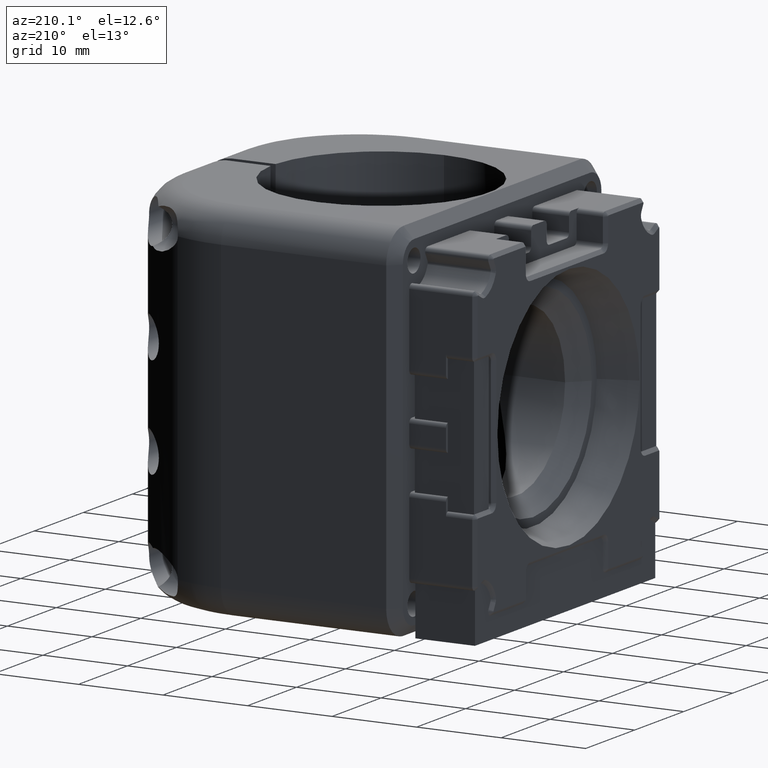
[diagram: clean part render]
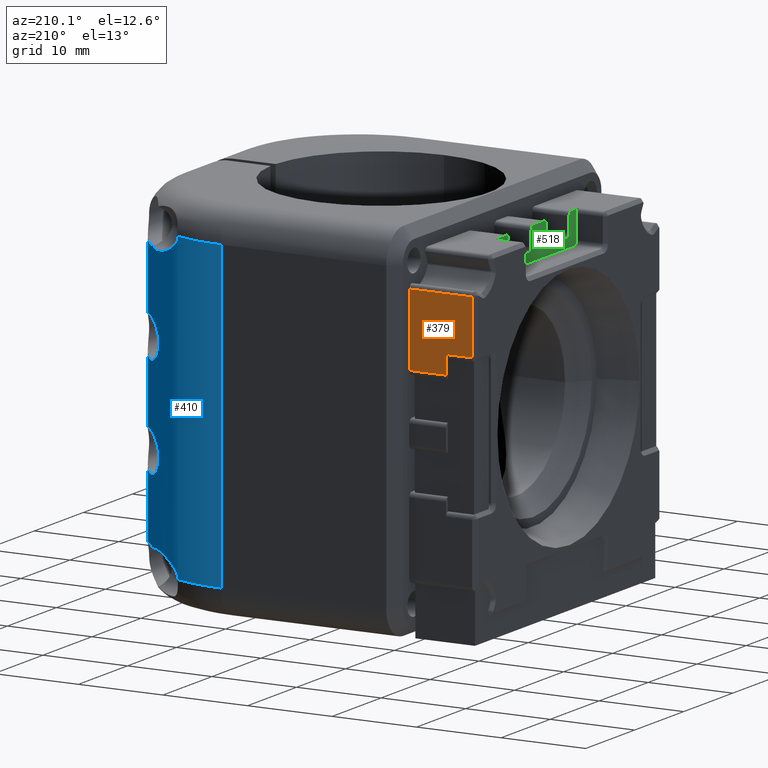
[diagram: same view with three faces highlighted in distinct colors, each labeled with its STEP entity id]
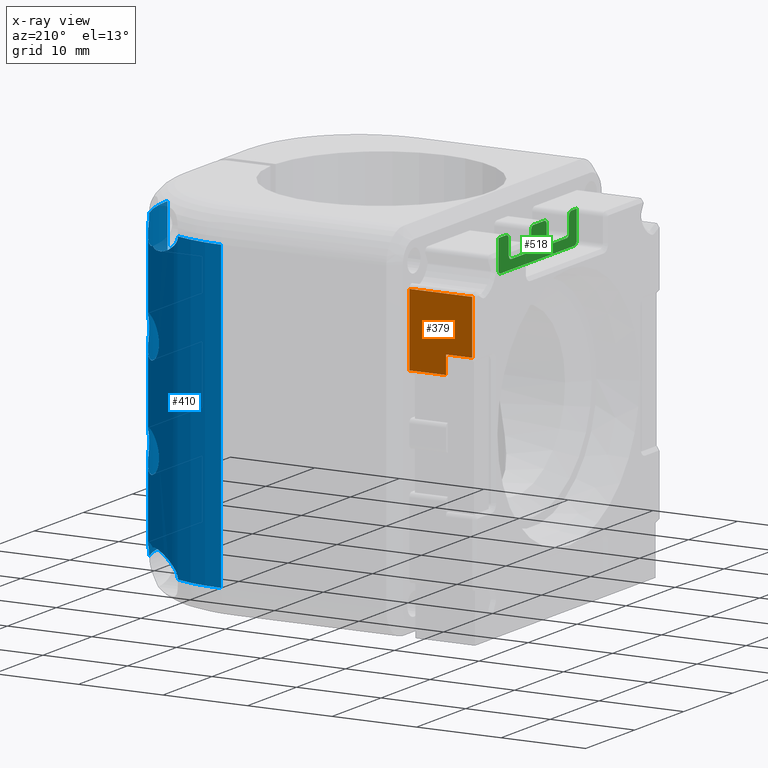
[diagram: x-ray of the same camera — body ghosted, the three highlighted faces saturated]
A machine part, auxiliary view with three faces highlighted in distinct colors.
The next image is the same camera in x-ray (body ghosted, the three faces saturated) — at least one of them is partly hidden behind the body in this view.
Their STEP definitions:

[orange] entity #379 — the highlighted planar face has unit normal (0, 1, -0).
#379=ADVANCED_FACE('',(#767),#3744,.T.);
#767=FACE_OUTER_BOUND('',#1156,.F.);
#1156=EDGE_LOOP('',(#1932,#1933,#1934,#1935,#1936,#1937,#1938));
#1932=ORIENTED_EDGE('',*,*,#5058,.T.);
#1933=ORIENTED_EDGE('',*,*,#5202,.F.);
#1934=ORIENTED_EDGE('',*,*,#4885,.F.);
#1935=ORIENTED_EDGE('',*,*,#4936,.T.);
#1936=ORIENTED_EDGE('',*,*,#4937,.F.);
#1937=ORIENTED_EDGE('',*,*,#4962,.T.);
#1938=ORIENTED_EDGE('',*,*,#5203,.T.);
#3744=PLANE('',#8348);
#4885=EDGE_CURVE('',#7658,#7660,#5917,.T.);
#4936=EDGE_CURVE('',#7658,#7610,#5943,.T.);
#4937=EDGE_CURVE('',#7609,#7610,#5944,.T.);
#4962=EDGE_CURVE('',#7609,#7581,#5953,.T.);
#5058=EDGE_CURVE('',#7494,#7493,#5989,.T.);
#5202=EDGE_CURVE('',#7660,#7493,#6094,.T.);
#5203=EDGE_CURVE('',#7581,#7494,#6095,.T.);
#5917=LINE('',#11794,#6599);
#5943=LINE('',#11845,#6625);
#5944=LINE('',#11846,#6626);
#5953=LINE('',#11871,#6635);
#5989=LINE('',#12237,#6671);
#6094=LINE('',#12381,#6776);
#6095=LINE('',#12382,#6777);
#6599=VECTOR('',#8938,6.39505479546001);
#6625=VECTOR('',#9014,3.10000000000003);
#6626=VECTOR('',#9015,0.499999620324991);
#6635=VECTOR('',#9056,1.6574525390448);
#6671=VECTOR('',#9180,8.5525069548298);
#6776=VECTOR('',#9363,7.45000000000009);
#6777=VECTOR('',#9364,4.34999999999997);
#7493=VERTEX_POINT('',#11218);
#7494=VERTEX_POINT('',#11219);
#7581=VERTEX_POINT('',#11306);
#7609=VERTEX_POINT('',#11334);
#7610=VERTEX_POINT('',#11335);
#7658=VERTEX_POINT('',#11383);
#7660=VERTEX_POINT('',#11385);
#8348=AXIS2_PLACEMENT_3D('',#13442,#10246,#10247);
#8938=DIRECTION('',(0.,7.59350296340441E-07,0.999999999999712));
#9014=DIRECTION('',(1.,0.,0.));
#9015=DIRECTION('',(0.,7.59350301045588E-07,0.999999999999712));
#9056=DIRECTION('',(0.,-7.59350296124499E-07,-0.999999999999712));
#9180=DIRECTION('',(0.,7.59350296573666E-07,0.999999999999712));
#9363=DIRECTION('',(1.,0.,0.));
#9364=DIRECTION('',(1.,0.,0.));
#10246=DIRECTION('',(0.,0.999999999999712,-7.59350296526754E-07));
#10247=DIRECTION('',(0.,7.59350296190846E-07,0.999999999999712));
#11218=CARTESIAN_POINT('',(58.8650000123865,18.9500050729054,15.2025063215615));
#11219=CARTESIAN_POINT('',(58.8650000123865,18.9499985785567,6.64999936673413));
#11306=CARTESIAN_POINT('',(54.5150000130991,18.9499985785567,6.64999936673413));
#11334=CARTESIAN_POINT('',(54.5150000130991,18.9499998371438,8.30745190577844));
#11335=CARTESIAN_POINT('',(54.5150000130991,18.9500002168186,8.80745152610329));
#11383=CARTESIAN_POINT('',(51.4150000130991,18.9500002168186,8.80745152610329));
#11385=CARTESIAN_POINT('',(51.4150000130991,18.9500050729054,15.2025063215615));
#11794=CARTESIAN_POINT('',(51.4150000130991,18.9500002168186,8.80745152610329));
#11845=CARTESIAN_POINT('',(51.4150000130991,18.9500002168186,8.80745152610329));
#11846=CARTESIAN_POINT('',(54.5150000130991,18.9499998371438,8.30745190577844));
#11871=CARTESIAN_POINT('',(54.5150000130991,18.9499998371438,8.30745190577844));
#12237=CARTESIAN_POINT('',(58.8650000120301,18.9499985785567,6.64999936673412));
#12381=CARTESIAN_POINT('',(51.415000013099,18.9500050729054,15.2025063215615));
#12382=CARTESIAN_POINT('',(54.5150000130991,18.9499985785567,6.64999936673412));
#13442=CARTESIAN_POINT('',(50.9294749435508,18.9499985136132,6.56447429718585));

[blue] entity #410 — the highlighted cylindrical surface (partial cylindrical patch) has radius 15 mm, axis along (0, 0, -1).
#190=CYLINDRICAL_SURFACE('',#8379,15.);
#286=FACE_BOUND('',#1199,.F.);
#287=FACE_BOUND('',#1200,.F.);
#410=ADVANCED_FACE('',(#286,#287,#798),#190,.T.);
#798=FACE_OUTER_BOUND('',#1201,.F.);
#1199=EDGE_LOOP('',(#2125,#2126));
#1200=EDGE_LOOP('',(#2127,#2128));
#1201=EDGE_LOOP('',(#2129,#2130,#2131,#2132,#2133,#2134,#2135,#2136,#2137,
#2138,#2139,#2140,#2141,#2142));
#2125=ORIENTED_EDGE('',*,*,#5362,.T.);
#2126=ORIENTED_EDGE('',*,*,#5361,.T.);
#2127=ORIENTED_EDGE('',*,*,#5358,.T.);
#2128=ORIENTED_EDGE('',*,*,#5357,.T.);
#2129=ORIENTED_EDGE('',*,*,#5450,.T.);
#2130=ORIENTED_EDGE('',*,*,#5241,.T.);
#2131=ORIENTED_EDGE('',*,*,#5392,.T.);
#2132=ORIENTED_EDGE('',*,*,#5391,.T.);
#2133=ORIENTED_EDGE('',*,*,#5369,.T.);
#2134=ORIENTED_EDGE('',*,*,#5368,.T.);
#2135=ORIENTED_EDGE('',*,*,#5240,.T.);
#2136=ORIENTED_EDGE('',*,*,#5449,.F.);
#2137=ORIENTED_EDGE('',*,*,#5242,.T.);
#2138=ORIENTED_EDGE('',*,*,#5376,.T.);
#2139=ORIENTED_EDGE('',*,*,#5375,.T.);
#2140=ORIENTED_EDGE('',*,*,#5396,.T.);
#2141=ORIENTED_EDGE('',*,*,#5395,.T.);
#2142=ORIENTED_EDGE('',*,*,#5239,.T.);
#4281=B_SPLINE_CURVE_WITH_KNOTS('',3,(#12536,#12537,#12538,#12539,#12540,
#12541,#12542,#12543,#12544,#12545,#12546,#12547,#12548,#12549,#12550,#12551,
#12552,#12553,#12554,#12555,#12556,#12557,#12558,#12559,#12560,#12561,#12562,
#12563,#12564,#12565,#12566,#12567,#12568,#12569,#12570),.UNSPECIFIED.,.F.,
 .F.,(4,1,1,1,1,1,1,1,1,1,1,1,1,1,1,1,1,1,1,1,1,1,1,1,1,1,1,1,1,1,1,1,4),
(0.,0.0377845750504133,0.0652618838620615,0.0986136321683953,0.13239523170994,
0.166484429644418,0.20073399810425,0.234966331919297,0.268967451303328,0.302482889421522,
0.335210364284196,0.366807204752889,0.396923472233582,0.425256711154664,
0.451660060822794,0.476348785842004,0.5,0.523651214157998,0.548339939177208,
0.574743288845338,0.603076527766419,0.63319279524711,0.664789635715803,0.697517110578478,
0.731032548696673,0.765033668080704,0.799266001895751,0.833515570355585,
0.867604768290061,0.901386367831604,0.934738116137937,0.962215424949585,
1.),.UNSPECIFIED.);
#4282=B_SPLINE_CURVE_WITH_KNOTS('',3,(#12571,#12572,#12573,#12574,#12575,
#12576,#12577,#12578,#12579,#12580,#12581,#12582,#12583,#12584,#12585,#12586,
#12587,#12588,#12589,#12590,#12591),.UNSPECIFIED.,.F.,.F.,(4,1,1,1,1,1,1,
1,1,1,1,1,1,1,1,1,1,1,4),(0.,0.0756598694553945,0.127405300531337,0.187396427309117,
0.244634281111426,0.299287912444721,0.351662534035218,0.402195963063574,
0.451432565410159,0.500000073757868,0.54856686127739,0.597802483080555,0.648336028420709,
0.700711526416832,0.75536577414234,0.812603599563418,0.872594673013636,0.924340130994981,
1.),.UNSPECIFIED.);
#4283=B_SPLINE_CURVE_WITH_KNOTS('',3,(#12594,#12595,#12596,#12597,#12598,
#12599,#12600,#12601,#12602,#12603,#12604,#12605,#12606,#12607,#12608,#12609,
#12610,#12611,#12612,#12613,#12614,#12615,#12616,#12617,#12618,#12619,#12620,
#12621,#12622,#12623,#12624,#12625,#12626,#12627,#12628),.UNSPECIFIED.,.F.,
 .F.,(4,1,1,1,1,1,1,1,1,1,1,1,1,1,1,1,1,1,1,1,1,1,1,1,1,1,1,1,1,1,1,1,4),
(0.,0.0377845750504042,0.0652618838620548,0.098613632168393,0.13239523170994,
0.166484429644418,0.20073399810425,0.234966331919298,0.268967451303329,0.302482889421524,
0.335210364284198,0.36680720475289,0.396923472233583,0.425256711154665,0.451660060822794,
0.476348785842004,0.5,0.523651214157997,0.548339939177206,0.574743288845337,
0.603076527766419,0.633192795247112,0.664789635715804,0.697517110578479,
0.731032548696673,0.765033668080704,0.799266001895752,0.833515570355585,
0.867604768290062,0.901386367831601,0.934738116137929,0.962215424949575,
1.),.UNSPECIFIED.);
#4284=B_SPLINE_CURVE_WITH_KNOTS('',3,(#12629,#12630,#12631,#12632,#12633,
#12634,#12635,#12636,#12637,#12638,#12639,#12640,#12641,#12642,#12643,#12644,
#12645,#12646,#12647,#12648,#12649),.UNSPECIFIED.,.F.,.F.,(4,1,1,1,1,1,1,
1,1,1,1,1,1,1,1,1,1,1,4),(0.,0.0756598694554,0.127405300531338,0.187396427309116,
0.244634281111427,0.299287912444722,0.351662534035218,0.402195963063574,
0.451432565410161,0.500000073757869,0.548566861277391,0.597802483080555,
0.64833602842071,0.700711526416832,0.755365774142339,0.812603599563416,0.872594673013637,
0.924340130994986,1.),.UNSPECIFIED.);
#4288=B_SPLINE_CURVE_WITH_KNOTS('',3,(#12688,#12689,#12690,#12691,#12692,
#12693,#12694,#12695,#12696,#12697,#12698,#12699,#12700,#12701,#12702,#12703,
#12704,#12705,#12706),.UNSPECIFIED.,.F.,.F.,(4,1,1,1,1,1,1,1,1,1,1,1,1,1,
1,1,4),(0.,0.0755612622257784,0.130510143634519,0.19720667763594,0.264762824357541,
0.332934103700909,0.401426090748267,0.469883612340535,0.537878753711249,
0.604902634476112,0.670350753955562,0.733537841596125,0.793764093338509,
0.850424661112845,0.903225853581998,0.944913088311796,1.),.UNSPECIFIED.);
#4289=B_SPLINE_CURVE_WITH_KNOTS('',3,(#12707,#12708,#12709,#12710,#12711,
#12712),.UNSPECIFIED.,.F.,.F.,(4,1,1,4),(0.,0.379077054323776,0.601362601685456,
1.),.UNSPECIFIED.);
#4293=B_SPLINE_CURVE_WITH_KNOTS('',3,(#12751,#12752,#12753,#12754,#12755,
#12756),.UNSPECIFIED.,.F.,.F.,(4,1,1,4),(0.,0.398637611769432,0.620923192224195,
1.),.UNSPECIFIED.);
#4294=B_SPLINE_CURVE_WITH_KNOTS('',3,(#12757,#12758,#12759,#12760,#12761,
#12762,#12763,#12764,#12765,#12766,#12767,#12768,#12769,#12770,#12771,#12772,
#12773,#12774,#12775),.UNSPECIFIED.,.F.,.F.,(4,1,1,1,1,1,1,1,1,1,1,1,1,1,
1,1,4),(0.,0.0550869086170942,0.096774137755452,0.149575322934375,0.206235884264683,
0.266462131611282,0.329649217005605,0.395097336198772,0.462121218224797,
0.530116361980057,0.598573886726592,0.667065877403268,0.735237160622783,
0.802793311286988,0.869489849154766,0.924438733686788,1.),.UNSPECIFIED.);
#4301=B_SPLINE_CURVE_WITH_KNOTS('',3,(#12851,#12852,#12853,#12854,#12855,
#12856),.UNSPECIFIED.,.F.,.F.,(4,1,1,4),(0.,0.39863458597799,0.620920150116321,
1.),.UNSPECIFIED.);
#4302=B_SPLINE_CURVE_WITH_KNOTS('',3,(#12857,#12858,#12859,#12860,#12861,
#12862,#12863,#12864,#12865,#12866,#12867,#12868,#12869,#12870,#12871,#12872,
#12873,#12874,#12875),.UNSPECIFIED.,.F.,.F.,(4,1,1,1,1,1,1,1,1,1,1,1,1,1,
1,1,4),(0.,0.0550868516847294,0.0967740617456924,0.149575244342214,0.206235823729063,
0.266462099129772,0.329649212979964,0.395097357368165,0.462121259354938,
0.530116417120218,0.598573949407904,0.667065941553946,0.735237220694546,
0.802793362337533,0.869489886759801,0.924438757501357,1.),.UNSPECIFIED.);
#4305=B_SPLINE_CURVE_WITH_KNOTS('',3,(#12896,#12897,#12898,#12899,#12900,
#12901,#12902,#12903,#12904,#12905,#12906,#12907,#12908,#12909,#12910,#12911,
#12912,#12913,#12914),.UNSPECIFIED.,.F.,.F.,(4,1,1,1,1,1,1,1,1,1,1,1,1,1,
1,1,4),(0.,0.0755612465860806,0.130510120450951,0.197206648739625,0.264762794325263,
0.332934077342046,0.401426073117442,0.469883608559433,0.537878768709293,
0.604902671957256,0.670350816059195,0.733537927663147,0.793764198668042,
0.850424771610792,0.903225946916991,0.944913151386431,1.),.UNSPECIFIED.);
#4306=B_SPLINE_CURVE_WITH_KNOTS('',3,(#12915,#12916,#12917,#12918,#12919,
#12920),.UNSPECIFIED.,.F.,.F.,(4,1,1,4),(0.,0.379080105714014,0.601365636623713,
1.),.UNSPECIFIED.);
#4519=CIRCLE('',#8106,15.);
#4520=CIRCLE('',#8107,15.);
#4521=CIRCLE('',#8108,15.);
#4522=CIRCLE('',#8109,15.);
#5239=EDGE_CURVE('',#7405,#7404,#4519,.T.);
#5240=EDGE_CURVE('',#7403,#7402,#4520,.T.);
#5241=EDGE_CURVE('',#7401,#7400,#4521,.T.);
#5242=EDGE_CURVE('',#7399,#7398,#4522,.T.);
#5357=EDGE_CURVE('',#7298,#7299,#4281,.T.);
#5358=EDGE_CURVE('',#7299,#7298,#4282,.T.);
#5361=EDGE_CURVE('',#7302,#7303,#4283,.T.);
#5362=EDGE_CURVE('',#7303,#7302,#4284,.T.);
#5368=EDGE_CURVE('',#7306,#7403,#4288,.T.);
#5369=EDGE_CURVE('',#7277,#7306,#4289,.T.);
#5375=EDGE_CURVE('',#7311,#7274,#4293,.T.);
#5376=EDGE_CURVE('',#7398,#7311,#4294,.T.);
#5391=EDGE_CURVE('',#7322,#7277,#4301,.T.);
#5392=EDGE_CURVE('',#7400,#7322,#4302,.T.);
#5395=EDGE_CURVE('',#7327,#7405,#4305,.T.);
#5396=EDGE_CURVE('',#7274,#7327,#4306,.T.);
#5449=EDGE_CURVE('',#7399,#7402,#6193,.T.);
#5450=EDGE_CURVE('',#7404,#7401,#6194,.T.);
#6193=LINE('',#13016,#6875);
#6194=LINE('',#13017,#6876);
#6875=VECTOR('',#9698,36.);
#6876=VECTOR('',#9699,36.);
#7274=VERTEX_POINT('',#10999);
#7277=VERTEX_POINT('',#11002);
#7298=VERTEX_POINT('',#11023);
#7299=VERTEX_POINT('',#11024);
#7302=VERTEX_POINT('',#11027);
#7303=VERTEX_POINT('',#11028);
#7306=VERTEX_POINT('',#11031);
#7311=VERTEX_POINT('',#11036);
#7322=VERTEX_POINT('',#11047);
#7327=VERTEX_POINT('',#11052);
#7398=VERTEX_POINT('',#11123);
#7399=VERTEX_POINT('',#11124);
#7400=VERTEX_POINT('',#11125);
#7401=VERTEX_POINT('',#11126);
#7402=VERTEX_POINT('',#11127);
#7403=VERTEX_POINT('',#11128);
#7404=VERTEX_POINT('',#11129);
#7405=VERTEX_POINT('',#11130);
#8106=AXIS2_PLACEMENT_3D('',#12418,#9410,#9411);
#8107=AXIS2_PLACEMENT_3D('',#12419,#9412,#9413);
#8108=AXIS2_PLACEMENT_3D('',#12420,#9414,#9415);
#8109=AXIS2_PLACEMENT_3D('',#12421,#9416,#9417);
#8379=AXIS2_PLACEMENT_3D('',#13473,#10308,#10309);
#9410=DIRECTION('',(0.,0.,1.));
#9411=DIRECTION('',(0.384086608279616,0.92329706884635,0.));
#9412=DIRECTION('',(0.,0.,-1.));
#9413=DIRECTION('',(0.923296366499054,0.384088296631965,0.));
#9414=DIRECTION('',(0.,0.,-1.));
#9415=DIRECTION('',(0.,1.,0.));
#9416=DIRECTION('',(0.,0.,1.));
#9417=DIRECTION('',(1.,0.,0.));
#9698=DIRECTION('',(0.,0.,-1.));
#9699=DIRECTION('',(0.,0.,-1.));
#10308=DIRECTION('',(0.,0.,-1.));
#10309=DIRECTION('',(0.,1.,0.));
#10999=CARTESIAN_POINT('',(90.271506582319,17.1066816866813,15.8264233041152));
#11002=CARTESIAN_POINT('',(90.2715059958822,17.1066825335574,-15.8264233922965));
#11023=CARTESIAN_POINT('',(91.164995854756,16.1306901188395,8.34999997813634));
#11024=CARTESIAN_POINT('',(91.1649958547017,16.1306901189691,3.6499999780955));
#11027=CARTESIAN_POINT('',(91.164995854756,16.1306901188395,-3.65000002186367));
#11028=CARTESIAN_POINT('',(91.1649958547017,16.1306901189691,-8.35000002190454));
#11031=CARTESIAN_POINT('',(91.164995854756,16.1306901188395,-15.6500000218636));
#11036=CARTESIAN_POINT('',(91.1649958547017,16.1306901189691,15.6499999780955));
#11047=CARTESIAN_POINT('',(89.2956723393839,18.0000105052099,-15.6500000218656));
#11052=CARTESIAN_POINT('',(89.295672339319,18.0000105052642,15.6499999780935));
#11123=CARTESIAN_POINT('',(93.5146359377949,12.2608707404447,18.0000003735002));
#11124=CARTESIAN_POINT('',(94.6650000120301,6.50000411883073,18.0000003689841));
#11125=CARTESIAN_POINT('',(85.4258412995403,20.3496505824904,-17.9999996325157));
#11126=CARTESIAN_POINT('',(79.6650000120301,21.5000041188306,-17.9999996310159));
#11127=CARTESIAN_POINT('',(94.6650000120301,6.50000411882875,-17.9999996310159));
#11128=CARTESIAN_POINT('',(93.5146321690228,12.2608798025727,-17.9999996325244));
#11129=CARTESIAN_POINT('',(79.6650000120301,21.5000041188307,18.0000003689841));
#11130=CARTESIAN_POINT('',(85.4258503614856,20.3496468138136,18.0000003735089));
#12418=CARTESIAN_POINT('',(79.6650000120301,6.50000411883067,18.0000003689841));
#12419=CARTESIAN_POINT('',(79.6650000120302,6.50000411883064,-17.9999996310159));
#12420=CARTESIAN_POINT('',(79.6650000120302,6.50000411883064,-17.9999996310159));
#12421=CARTESIAN_POINT('',(79.6650000120301,6.50000411883067,18.0000003689841));
#12536=CARTESIAN_POINT('',(91.1649969193371,16.1306879539381,8.34999997812297));
#12537=CARTESIAN_POINT('',(91.2533990143816,16.0251260907912,8.3499974843516));
#12538=CARTESIAN_POINT('',(91.4035427655136,15.840733801877,8.34140103939636));
#12539=CARTESIAN_POINT('',(91.6229053205884,15.5578739963282,8.30795818771637));
#12540=CARTESIAN_POINT('',(91.8261187983716,15.2835608904422,8.25868186874663));
#12541=CARTESIAN_POINT('',(92.0345056246781,14.9875814040423,8.18692412983746));
#12542=CARTESIAN_POINT('',(92.2351585077877,14.6874500882894,8.09605704968475));
#12543=CARTESIAN_POINT('',(92.4266989085664,14.3855051991165,7.98667717197069));
#12544=CARTESIAN_POINT('',(92.6077744586032,14.0845142430372,7.85938930664099));
#12545=CARTESIAN_POINT('',(92.7770413686389,13.7877895449323,7.71479077720116));
#12546=CARTESIAN_POINT('',(92.9331297531336,13.499354611061,7.55345187204677));
#12547=CARTESIAN_POINT('',(93.0745928052919,13.2240357703648,7.37600211543908));
#12548=CARTESIAN_POINT('',(93.1999218530994,12.9676465615019,7.18303299440242));
#12549=CARTESIAN_POINT('',(93.3075325326633,12.7369735896757,6.97508956989127));
#12550=CARTESIAN_POINT('',(93.3956558592968,12.5400535916938,6.75239385404981));
#12551=CARTESIAN_POINT('',(93.4624095115412,12.3851831202951,6.51539954783369));
#12552=CARTESIAN_POINT('',(93.5049676932048,12.2842937271479,6.26309377915757));
#12553=CARTESIAN_POINT('',(93.5194929528787,12.2501623295101,5.99999997811597));
#12554=CARTESIAN_POINT('',(93.5049676932048,12.2842937271479,5.73690617707437));
#12555=CARTESIAN_POINT('',(93.4624095115413,12.3851831202951,5.48460040839823));
#12556=CARTESIAN_POINT('',(93.3956558592968,12.5400535916938,5.24760610218212));
#12557=CARTESIAN_POINT('',(93.3075325326634,12.7369735896756,5.02491038634063));
#12558=CARTESIAN_POINT('',(93.1999218530994,12.9676465615018,4.81696696182951));
#12559=CARTESIAN_POINT('',(93.074592805292,13.2240357703647,4.62399784079283));
#12560=CARTESIAN_POINT('',(92.9331297531336,13.499354611061,4.44654808418516));
#12561=CARTESIAN_POINT('',(92.777041368639,13.7877895449323,4.28520917903078));
#12562=CARTESIAN_POINT('',(92.6077744586031,14.0845142430372,4.14061064959097));
#12563=CARTESIAN_POINT('',(92.4266989085664,14.3855051991165,4.01332278426122));
#12564=CARTESIAN_POINT('',(92.2351585077877,14.6874500882894,3.90394290654717));
#12565=CARTESIAN_POINT('',(92.0345056246781,14.9875814040423,3.81307582639447));
#12566=CARTESIAN_POINT('',(91.8261187983716,15.2835608904422,3.74131808748528));
#12567=CARTESIAN_POINT('',(91.6229053205884,15.5578739963282,3.6920417685156));
#12568=CARTESIAN_POINT('',(91.4035427655136,15.8407338018769,3.65859891683563));
#12569=CARTESIAN_POINT('',(91.2533990143817,16.0251260907911,3.65000247188035));
#12570=CARTESIAN_POINT('',(91.1649969193371,16.1306879539381,3.64999997810894));
#12571=CARTESIAN_POINT('',(91.1649941997528,16.1306912014837,3.64999997809283));
#12572=CARTESIAN_POINT('',(91.0204242123861,16.3033506966389,3.65002607071561));
#12573=CARTESIAN_POINT('',(90.7703072655201,16.5885970622398,3.67235120018488));
#12574=CARTESIAN_POINT('',(90.3922385452872,16.9883623047839,3.77110093469195));
#12575=CARTESIAN_POINT('',(90.0494568766846,17.3278852790468,3.9187360441346));
#12576=CARTESIAN_POINT('',(89.7095256675524,17.6431655788192,4.13996716070065));
#12577=CARTESIAN_POINT('',(89.4067614065428,17.9080225288026,4.4222712691086));
#12578=CARTESIAN_POINT('',(89.1536116068352,18.1186691187051,4.76028299152357));
#12579=CARTESIAN_POINT('',(88.9619901941744,18.2719485466875,5.14487406608435));
#12580=CARTESIAN_POINT('',(88.8422268650992,18.3651407532126,5.56344499705559));
#12581=CARTESIAN_POINT('',(88.8015141724015,18.3963584829518,5.99999872709547));
#12582=CARTESIAN_POINT('',(88.8422279559171,18.3651394025749,6.43654810873591));
#12583=CARTESIAN_POINT('',(88.9619829427258,18.2719558631063,6.85511864969911));
#12584=CARTESIAN_POINT('',(89.1536080299886,18.1186704604885,7.23970599474295));
#12585=CARTESIAN_POINT('',(89.4067572471429,17.9080265303032,7.57772590804858));
#12586=CARTESIAN_POINT('',(89.7095255038995,17.6431654368229,7.8600302254623));
#12587=CARTESIAN_POINT('',(90.0494566431955,17.3278855947101,8.0812650849934));
#12588=CARTESIAN_POINT('',(90.3922385866389,16.9883622191477,8.22889894803868));
#12589=CARTESIAN_POINT('',(90.7703072209489,16.5885971527999,8.32764865142288));
#12590=CARTESIAN_POINT('',(91.0204242167907,16.3033506891979,8.34997388719188));
#12591=CARTESIAN_POINT('',(91.1649941999156,16.1306912012893,8.34999997813897));
#12594=CARTESIAN_POINT('',(91.1649969193371,16.1306879539381,-3.65000002187703));
#12595=CARTESIAN_POINT('',(91.2533990143816,16.0251260907912,-3.65000251564844));
#12596=CARTESIAN_POINT('',(91.4035427655136,15.8407338018771,-3.65859896060363));
#12597=CARTESIAN_POINT('',(91.6229053205883,15.5578739963283,-3.6920418122837));
#12598=CARTESIAN_POINT('',(91.8261187983716,15.2835608904423,-3.74131813125335));
#12599=CARTESIAN_POINT('',(92.0345056246781,14.9875814040423,-3.81307587016256));
#12600=CARTESIAN_POINT('',(92.2351585077876,14.6874500882894,-3.90394295031526));
#12601=CARTESIAN_POINT('',(92.4266989085664,14.3855051991165,-4.01332282802931));
#12602=CARTESIAN_POINT('',(92.6077744586031,14.0845142430372,-4.14061069335905));
#12603=CARTESIAN_POINT('',(92.777041368639,13.7877895449323,-4.28520922279885));
#12604=CARTESIAN_POINT('',(92.9331297531336,13.499354611061,-4.44654812795327));
#12605=CARTESIAN_POINT('',(93.0745928052919,13.2240357703648,-4.62399788456092));
#12606=CARTESIAN_POINT('',(93.1999218530994,12.9676465615019,-4.81696700559761));
#12607=CARTESIAN_POINT('',(93.3075325326633,12.7369735896757,-5.02491043010872));
#12608=CARTESIAN_POINT('',(93.3956558592968,12.5400535916938,-5.2476061459502));
#12609=CARTESIAN_POINT('',(93.4624095115412,12.3851831202951,-5.48460045216632));
#12610=CARTESIAN_POINT('',(93.5049676932048,12.2842937271479,-5.73690622084245));
#12611=CARTESIAN_POINT('',(93.5194929528787,12.2501623295101,-6.00000002188404));
#12612=CARTESIAN_POINT('',(93.5049676932048,12.2842937271479,-6.26309382292563));
#12613=CARTESIAN_POINT('',(93.4624095115413,12.3851831202951,-6.51539959160176));
#12614=CARTESIAN_POINT('',(93.3956558592968,12.5400535916938,-6.75239389781791));
#12615=CARTESIAN_POINT('',(93.3075325326633,12.7369735896756,-6.97508961365939));
#12616=CARTESIAN_POINT('',(93.1999218530994,12.9676465615019,-7.18303303817048));
#12617=CARTESIAN_POINT('',(93.0745928052919,13.2240357703648,-7.37600215920716));
#12618=CARTESIAN_POINT('',(92.9331297531336,13.499354611061,-7.55345191581488));
#12619=CARTESIAN_POINT('',(92.777041368639,13.7877895449323,-7.71479082096926));
#12620=CARTESIAN_POINT('',(92.6077744586031,14.0845142430372,-7.85938935040906));
#12621=CARTESIAN_POINT('',(92.4266989085664,14.3855051991165,-7.98667721573879));
#12622=CARTESIAN_POINT('',(92.2351585077876,14.6874500882893,-8.09605709345284));
#12623=CARTESIAN_POINT('',(92.0345056246781,14.9875814040423,-8.18692417360555));
#12624=CARTESIAN_POINT('',(91.8261187983717,15.2835608904422,-8.25868191251475));
#12625=CARTESIAN_POINT('',(91.6229053205884,15.5578739963281,-8.3079582314844));
#12626=CARTESIAN_POINT('',(91.4035427655135,15.8407338018768,-8.34140108316445));
#12627=CARTESIAN_POINT('',(91.2533990143817,16.0251260907911,-8.34999752811966));
#12628=CARTESIAN_POINT('',(91.1649969193371,16.1306879539381,-8.35000002189108));
#12629=CARTESIAN_POINT('',(91.1649941997528,16.1306912014837,-8.3500000219072));
#12630=CARTESIAN_POINT('',(91.0204242123861,16.3033506966389,-8.34997392928446));
#12631=CARTESIAN_POINT('',(90.7703072655202,16.5885970622399,-8.32764879981515));
#12632=CARTESIAN_POINT('',(90.3922385452872,16.9883623047839,-8.22889906530808));
#12633=CARTESIAN_POINT('',(90.0494568766846,17.3278852790468,-8.08126395586542));
#12634=CARTESIAN_POINT('',(89.7095256675525,17.6431655788192,-7.86003283929936));
#12635=CARTESIAN_POINT('',(89.4067614065428,17.9080225288026,-7.57772873089138));
#12636=CARTESIAN_POINT('',(89.1536116068352,18.1186691187051,-7.23971700847643));
#12637=CARTESIAN_POINT('',(88.9619901941743,18.2719485466875,-6.85512593391565));
#12638=CARTESIAN_POINT('',(88.8422268650992,18.3651407532127,-6.43655500294442));
#12639=CARTESIAN_POINT('',(88.8015141724015,18.3963584829518,-6.00000127290454));
#12640=CARTESIAN_POINT('',(88.8422279559171,18.3651394025749,-5.5634518912641));
#12641=CARTESIAN_POINT('',(88.9619829427257,18.2719558631063,-5.1448813503009));
#12642=CARTESIAN_POINT('',(89.1536080299886,18.1186704604885,-4.76029400525705));
#12643=CARTESIAN_POINT('',(89.4067572471429,17.9080265303032,-4.42227409195146));
#12644=CARTESIAN_POINT('',(89.7095255038995,17.6431654368229,-4.1399697745377));
#12645=CARTESIAN_POINT('',(90.0494566431955,17.3278855947101,-3.91873491500663));
#12646=CARTESIAN_POINT('',(90.3922385866389,16.9883622191478,-3.77110105196133));
#12647=CARTESIAN_POINT('',(90.7703072209489,16.5885971527998,-3.67235134857712));
#12648=CARTESIAN_POINT('',(91.0204242167907,16.3033506891979,-3.65002611280811));
#12649=CARTESIAN_POINT('',(91.1649941999156,16.1306912012893,-3.65000002186105));
#12688=CARTESIAN_POINT('',(91.1649969193371,16.1306879539381,-15.650000021877));
#12689=CARTESIAN_POINT('',(91.253399005619,16.025126101255,-15.6500025156466));
#12690=CARTESIAN_POINT('',(91.4035427420414,15.8407338309187,-15.6585989588989));
#12691=CARTESIAN_POINT('',(91.6229052763585,15.5578740543252,-15.6920418040859));
#12692=CARTESIAN_POINT('',(91.8261187356467,15.2835609767612,-15.7413181136081));
#12693=CARTESIAN_POINT('',(92.0345055440041,14.9875815212617,-15.8130758387392));
#12694=CARTESIAN_POINT('',(92.2351584116646,14.6874502348275,-15.9039429022159));
#12695=CARTESIAN_POINT('',(92.4266987978729,14.3855053798101,-16.0133227578391));
#12696=CARTESIAN_POINT('',(92.6077743420638,14.0845144343109,-16.140610605925));
#12697=CARTESIAN_POINT('',(92.777041227845,13.7877898229259,-16.2852090859416));
#12698=CARTESIAN_POINT('',(92.9331296701631,13.4993546830481,-16.4465480449626));
#12699=CARTESIAN_POINT('',(93.0745925066849,13.2240366471141,-16.6239974774482));
#12700=CARTESIAN_POINT('',(93.1999223003573,12.967644724629,-16.816967566358));
#12701=CARTESIAN_POINT('',(93.3075305326417,12.736980753744,-17.0249076301528));
#12702=CARTESIAN_POINT('',(93.3956617769506,12.5400317556872,-17.2476139945272));
#12703=CARTESIAN_POINT('',(93.4591620066545,12.392741139414,-17.4731095233416));
#12704=CARTESIAN_POINT('',(93.5033455681625,12.2881462010004,-17.7234829701782));
#12705=CARTESIAN_POINT('',(93.5147673217834,12.2612810266864,-17.8994575461767));
#12706=CARTESIAN_POINT('',(93.5147209772771,12.261375498874,-17.9999996264993));
#12707=CARTESIAN_POINT('',(90.2716690606039,17.1065268432762,-15.826435825254));
#12708=CARTESIAN_POINT('',(90.3866265729214,16.9915821106098,-15.7791942816559));
#12709=CARTESIAN_POINT('',(90.5692537649322,16.8029888305736,-15.7209486157792));
#12710=CARTESIAN_POINT('',(90.8689409891506,16.4764925021523,-15.662943139086));
#12711=CARTESIAN_POINT('',(91.0507273293663,16.267154087705,-15.6500072674698));
#12712=CARTESIAN_POINT('',(91.1649941999156,16.1306912012893,-15.6500000218611));
#12751=CARTESIAN_POINT('',(91.1649941997528,16.1306912014837,15.6499999780928));
#12752=CARTESIAN_POINT('',(91.0507274428986,16.2671539516884,15.6500072239548));
#12753=CARTESIAN_POINT('',(90.8689413039063,16.4764921242609,15.6629430127564));
#12754=CARTESIAN_POINT('',(90.5692545412591,16.8029879837749,15.720948278679));
#12755=CARTESIAN_POINT('',(90.3866277456353,16.9915809249919,15.7791939663898));
#12756=CARTESIAN_POINT('',(90.2716705143457,17.1065254056429,15.8264354788607));
#12757=CARTESIAN_POINT('',(93.514720977277,12.261375498874,18.0000003735007));
#12758=CARTESIAN_POINT('',(93.514767355062,12.2612809483525,17.8994582845322));
#12759=CARTESIAN_POINT('',(93.5033456577774,12.2881459891121,17.7234836729253));
#12760=CARTESIAN_POINT('',(93.4591621603062,12.3927407775808,17.473110136431));
#12761=CARTESIAN_POINT('',(93.3956619741311,12.5400313065622,17.2476145288696));
#12762=CARTESIAN_POINT('',(93.307530762296,12.7369802509984,17.0249080864306));
#12763=CARTESIAN_POINT('',(93.1999225506823,12.9676442004337,16.8169679495923));
#12764=CARTESIAN_POINT('',(93.0745927674659,13.2240361272593,16.623997792843));
#12765=CARTESIAN_POINT('',(92.9331299321293,13.4993541869654,16.4465482970604));
#12766=CARTESIAN_POINT('',(92.7770414826752,13.7877893650548,16.2852092796953));
#12767=CARTESIAN_POINT('',(92.6077745824532,14.0845140249561,16.1406107469136));
#12768=CARTESIAN_POINT('',(92.4266990172944,14.3855050256301,16.0133228517929));
#12769=CARTESIAN_POINT('',(92.2351586044321,14.6874499398393,15.9039429553518));
#12770=CARTESIAN_POINT('',(92.0345057052152,14.9875812873247,15.8130758576327));
#12771=CARTESIAN_POINT('',(91.8261188611323,15.2835608039924,15.7413181051789));
#12772=CARTESIAN_POINT('',(91.622905364811,15.557873938358,15.6920417767035));
#12773=CARTESIAN_POINT('',(91.403542788988,15.8407337728271,15.6585989185433));
#12774=CARTESIAN_POINT('',(91.2533990231436,16.0251260803296,15.6500024718812));
#12775=CARTESIAN_POINT('',(91.1649969193371,16.1306879539381,15.6499999781089));
#12851=CARTESIAN_POINT('',(89.2956745044631,18.0000088502399,-15.650000021863));
#12852=CARTESIAN_POINT('',(89.4321000469437,17.8857734965702,-15.6500072570318));
#12853=CARTESIAN_POINT('',(89.6413825976597,17.704037884125,-15.6629359977758));
#12854=CARTESIAN_POINT('',(89.9677970619431,17.4044338829333,-15.7209086002526));
#12855=CARTESIAN_POINT('',(90.1563471598727,17.2218560228379,-15.7791211860924));
#12856=CARTESIAN_POINT('',(90.2712677597396,17.1069281577696,-15.8263356600813));
#12857=CARTESIAN_POINT('',(85.4263460670737,20.3497356235405,-17.9999996264992));
#12858=CARTESIAN_POINT('',(85.4262515933948,20.349781968532,-17.8994574825765));
#12859=CARTESIAN_POINT('',(85.4531169384485,20.3383601981468,-17.7234827662892));
#12860=CARTESIAN_POINT('',(85.5577124897704,20.2941765969744,-17.4731092414433));
#12861=CARTESIAN_POINT('',(85.7050039021344,20.2306763325684,-17.2476137151021));
#12862=CARTESIAN_POINT('',(85.9019538385242,20.1425450727832,-17.0249073907518));
#12863=CARTESIAN_POINT('',(86.1326188002083,20.0349368368666,-16.8169673701247));
#12864=CARTESIAN_POINT('',(86.3890117352632,19.9096070520725,-16.6239973336673));
#12865=CARTESIAN_POINT('',(86.6643307671453,19.7681442339234,-16.4465479486213));
#12866=CARTESIAN_POINT('',(86.9527668732254,19.6120558152502,-16.2852090288326));
#12867=CARTESIAN_POINT('',(87.2494924111784,19.4427889543165,-16.1406105772928));
#12868=CARTESIAN_POINT('',(87.5504842421254,19.2617134349203,-16.0133227504523));
#12869=CARTESIAN_POINT('',(87.8524299380672,19.0701730701711,-15.9039429070431));
#12870=CARTESIAN_POINT('',(88.1525620220575,18.8695202186056,-15.8130758487294));
#12871=CARTESIAN_POINT('',(88.4485422333543,18.6611334198162,-15.741318123629));
#12872=CARTESIAN_POINT('',(88.7228559902344,18.4579199605022,-15.6920418106239));
#12873=CARTESIAN_POINT('',(89.0057164464512,18.2385574198216,-15.6585989614357));
#12874=CARTESIAN_POINT('',(89.190109155206,18.0884136680446,-15.6500025157686));
#12875=CARTESIAN_POINT('',(89.2956712568706,18.0000115698575,-15.6500000218791));
#12896=CARTESIAN_POINT('',(89.2956712568705,18.0000115698575,15.6499999781069));
#12897=CARTESIAN_POINT('',(89.1901091342804,18.0884136855692,15.6500024719991));
#12898=CARTESIAN_POINT('',(89.0057163883592,18.2385574667685,15.6585989210761));
#12899=CARTESIAN_POINT('',(88.7228558742665,18.4579200489551,15.6920417832375));
#12900=CARTESIAN_POINT('',(88.4485420605842,18.6611335453023,15.7413181151958));
#12901=CARTESIAN_POINT('',(88.1525617881187,18.8695203798175,15.813075867619));
#12902=CARTESIAN_POINT('',(87.8524296430768,19.0701732629396,15.9039429601754));
#12903=CARTESIAN_POINT('',(87.5504838879425,19.261713654343,16.0133228444027));
#12904=CARTESIAN_POINT('',(87.2494920018203,19.4427891947071,16.1406107182782));
#12905=CARTESIAN_POINT('',(86.9527664153506,19.6120560700816,16.2852092225834));
#12906=CARTESIAN_POINT('',(86.6643302710584,19.7681444958909,16.4465482007163));
#12907=CARTESIAN_POINT('',(86.3890112154037,19.9096073128549,16.6239976490596));
#12908=CARTESIAN_POINT('',(86.132618276008,20.0349370871929,16.8169677533568));
#12909=CARTESIAN_POINT('',(85.9019533357738,20.1425453024386,17.0249078470279));
#12910=CARTESIAN_POINT('',(85.7050034530049,20.23067652975,17.2476142494431));
#12911=CARTESIAN_POINT('',(85.5577121279334,20.2941767506269,17.4731098545319));
#12912=CARTESIAN_POINT('',(85.4531167265578,20.3383602877624,17.7234834690362));
#12913=CARTESIAN_POINT('',(85.4262515150599,20.3497820018109,17.8994582209321));
#12914=CARTESIAN_POINT('',(85.4263460670737,20.3497356235405,18.0000003735008));
#12915=CARTESIAN_POINT('',(90.2712684828414,17.1069274185817,15.8263356251427));
#12916=CARTESIAN_POINT('',(90.1563477018058,17.2218554783913,15.7791211998032));
#12917=CARTESIAN_POINT('',(89.9677973921931,17.4044335909426,15.7209087330677));
#12918=CARTESIAN_POINT('',(89.6413827003387,17.7040378103127,15.6629360158324));
#12919=CARTESIAN_POINT('',(89.4321000726633,17.8857734753758,15.6500072129754));
#12920=CARTESIAN_POINT('',(89.2956745042685,18.0000088504029,15.6499999780909));
#13016=CARTESIAN_POINT('',(94.6650000120301,6.50000411883066,18.0000003689841));
#13017=CARTESIAN_POINT('',(79.6650000120301,21.5000041188307,18.0000003689841));
#13473=CARTESIAN_POINT('',(79.6650000120301,6.50000411883072,112.625000368984));

[green] entity #518 — the highlighted planar face has unit normal (-1, 0, 0).
#518=ADVANCED_FACE('',(#906),#3781,.T.);
#906=FACE_OUTER_BOUND('',#1326,.F.);
#1326=EDGE_LOOP('',(#2755,#2756,#2757,#2758,#2759,#2760,#2761,#2762,#2763,
#2764,#2765,#2766,#2767,#2768,#2769,#2770,#2771,#2772,#2773,#2774,#2775,
#2776,#2777,#2778));
#2755=ORIENTED_EDGE('',*,*,#5518,.F.);
#2756=ORIENTED_EDGE('',*,*,#5512,.F.);
#2757=ORIENTED_EDGE('',*,*,#4994,.F.);
#2758=ORIENTED_EDGE('',*,*,#4995,.T.);
#2759=ORIENTED_EDGE('',*,*,#4996,.F.);
#2760=ORIENTED_EDGE('',*,*,#4997,.F.);
#2761=ORIENTED_EDGE('',*,*,#4998,.F.);
#2762=ORIENTED_EDGE('',*,*,#4999,.F.);
#2763=ORIENTED_EDGE('',*,*,#5000,.F.);
#2764=ORIENTED_EDGE('',*,*,#5001,.T.);
#2765=ORIENTED_EDGE('',*,*,#5002,.F.);
#2766=ORIENTED_EDGE('',*,*,#5003,.T.);
#2767=ORIENTED_EDGE('',*,*,#5004,.F.);
#2768=ORIENTED_EDGE('',*,*,#5005,.F.);
#2769=ORIENTED_EDGE('',*,*,#5006,.F.);
#2770=ORIENTED_EDGE('',*,*,#5007,.F.);
#2771=ORIENTED_EDGE('',*,*,#5008,.F.);
#2772=ORIENTED_EDGE('',*,*,#5009,.T.);
#2773=ORIENTED_EDGE('',*,*,#5010,.F.);
#2774=ORIENTED_EDGE('',*,*,#5509,.F.);
#2775=ORIENTED_EDGE('',*,*,#5510,.F.);
#2776=ORIENTED_EDGE('',*,*,#4938,.T.);
#2777=ORIENTED_EDGE('',*,*,#5517,.F.);
#2778=ORIENTED_EDGE('',*,*,#4939,.T.);
#3781=PLANE('',#8487);
#4410=CIRCLE('',#7997,0.5);
#4411=CIRCLE('',#7998,0.5);
#4441=CIRCLE('',#8028,0.5);
#4442=CIRCLE('',#8029,0.5);
#4443=CIRCLE('',#8030,0.5);
#4444=CIRCLE('',#8031,0.5);
#4445=CIRCLE('',#8032,0.500000000000004);
#4446=CIRCLE('',#8033,0.499999999999996);
#4447=CIRCLE('',#8034,0.5);
#4448=CIRCLE('',#8035,0.499999999999994);
#4938=EDGE_CURVE('',#7608,#7607,#4410,.T.);
#4939=EDGE_CURVE('',#7606,#7605,#4411,.T.);
#4994=EDGE_CURVE('',#7557,#7617,#5970,.T.);
#4995=EDGE_CURVE('',#7557,#7556,#4441,.T.);
#4996=EDGE_CURVE('',#7555,#7556,#5971,.T.);
#4997=EDGE_CURVE('',#7554,#7555,#4442,.T.);
#4998=EDGE_CURVE('',#7553,#7554,#5972,.T.);
#4999=EDGE_CURVE('',#7552,#7553,#4443,.T.);
#5000=EDGE_CURVE('',#7551,#7552,#5973,.T.);
#5001=EDGE_CURVE('',#7551,#7550,#4444,.T.);
#5002=EDGE_CURVE('',#7549,#7550,#5974,.T.);
#5003=EDGE_CURVE('',#7549,#7548,#4445,.T.);
#5004=EDGE_CURVE('',#7547,#7548,#5975,.T.);
#5005=EDGE_CURVE('',#7546,#7547,#4446,.T.);
#5006=EDGE_CURVE('',#7545,#7546,#5976,.T.);
#5007=EDGE_CURVE('',#7544,#7545,#4447,.T.);
#5008=EDGE_CURVE('',#7543,#7544,#5977,.T.);
#5009=EDGE_CURVE('',#7543,#7542,#4448,.T.);
#5010=EDGE_CURVE('',#7619,#7542,#5978,.T.);
#5509=EDGE_CURVE('',#7245,#7619,#6237,.T.);
#5510=EDGE_CURVE('',#7608,#7245,#6238,.T.);
#5512=EDGE_CURVE('',#7617,#7244,#6240,.T.);
#5517=EDGE_CURVE('',#7606,#7607,#6245,.T.);
#5518=EDGE_CURVE('',#7244,#7605,#6246,.T.);
#5970=LINE('',#11903,#6652);
#5971=LINE('',#11905,#6653);
#5972=LINE('',#11907,#6654);
#5973=LINE('',#11909,#6655);
#5974=LINE('',#11911,#6656);
#5975=LINE('',#11913,#6657);
#5976=LINE('',#11915,#6658);
#5977=LINE('',#11917,#6659);
#5978=LINE('',#11919,#6660);
#6237=LINE('',#13076,#6919);
#6238=LINE('',#13077,#6920);
#6240=LINE('',#13079,#6922);
#6245=LINE('',#13084,#6927);
#6246=LINE('',#13085,#6928);
#6652=VECTOR('',#9103,1.65745215940252);
#6653=VECTOR('',#9106,1.69999260391079);
#6654=VECTOR('',#9109,3.5499998735711);
#6655=VECTOR('',#9112,1.69999260392581);
#6656=VECTOR('',#9115,2.2);
#6657=VECTOR('',#9118,1.69999260393716);
#6658=VECTOR('',#9121,3.54999987356997);
#6659=VECTOR('',#9124,1.69999366704209);
#6660=VECTOR('',#9127,1.04254847313356);
#6919=VECTOR('',#9774,0.499999620325003);
#6920=VECTOR('',#9775,2.80000202230901);
#6922=VECTOR('',#9777,0.499999999999787);
#6927=VECTOR('',#9782,15.);
#6928=VECTOR('',#9783,2.79999978787187);
#7244=VERTEX_POINT('',#10969);
#7245=VERTEX_POINT('',#10970);
#7542=VERTEX_POINT('',#11267);
#7543=VERTEX_POINT('',#11268);
#7544=VERTEX_POINT('',#11269);
#7545=VERTEX_POINT('',#11270);
#7546=VERTEX_POINT('',#11271);
#7547=VERTEX_POINT('',#11272);
#7548=VERTEX_POINT('',#11273);
#7549=VERTEX_POINT('',#11274);
#7550=VERTEX_POINT('',#11275);
#7551=VERTEX_POINT('',#11276);
#7552=VERTEX_POINT('',#11277);
#7553=VERTEX_POINT('',#11278);
#7554=VERTEX_POINT('',#11279);
#7555=VERTEX_POINT('',#11280);
#7556=VERTEX_POINT('',#11281);
#7557=VERTEX_POINT('',#11282);
#7605=VERTEX_POINT('',#11330);
#7606=VERTEX_POINT('',#11331);
#7607=VERTEX_POINT('',#11332);
#7608=VERTEX_POINT('',#11333);
#7617=VERTEX_POINT('',#11342);
#7619=VERTEX_POINT('',#11344);
#7997=AXIS2_PLACEMENT_3D('',#11847,#9016,#9017);
#7998=AXIS2_PLACEMENT_3D('',#11848,#9018,#9019);
#8028=AXIS2_PLACEMENT_3D('',#11904,#9104,#9105);
#8029=AXIS2_PLACEMENT_3D('',#11906,#9107,#9108);
#8030=AXIS2_PLACEMENT_3D('',#11908,#9110,#9111);
#8031=AXIS2_PLACEMENT_3D('',#11910,#9113,#9114);
#8032=AXIS2_PLACEMENT_3D('',#11912,#9116,#9117);
#8033=AXIS2_PLACEMENT_3D('',#11914,#9119,#9120);
#8034=AXIS2_PLACEMENT_3D('',#11916,#9122,#9123);
#8035=AXIS2_PLACEMENT_3D('',#11918,#9125,#9126);
#8487=AXIS2_PLACEMENT_3D('',#13581,#10524,#10525);
#9016=DIRECTION('',(1.,0.,0.));
#9017=DIRECTION('',(0.,-1.,0.));
#9018=DIRECTION('',(1.,0.,0.));
#9019=DIRECTION('',(0.,0.,-1.));
#9103=DIRECTION('',(0.,1.,0.));
#9104=DIRECTION('',(1.,0.,0.));
#9105=DIRECTION('',(0.,0.,1.));
#9106=DIRECTION('',(0.,0.,1.));
#9107=DIRECTION('',(1.,0.,0.));
#9108=DIRECTION('',(0.,0.,-1.));
#9109=DIRECTION('',(0.,1.,0.));
#9110=DIRECTION('',(1.,0.,0.));
#9111=DIRECTION('',(0.,-1.,0.));
#9112=DIRECTION('',(0.,0.,-1.));
#9113=DIRECTION('',(1.,0.,0.));
#9114=DIRECTION('',(0.,1.,0.));
#9115=DIRECTION('',(0.,1.,0.));
#9116=DIRECTION('',(1.,0.,0.));
#9117=DIRECTION('',(0.,0.,1.));
#9118=DIRECTION('',(0.,0.,1.));
#9119=DIRECTION('',(1.,0.,0.));
#9120=DIRECTION('',(0.,0.,-1.));
#9121=DIRECTION('',(0.,1.,0.));
#9122=DIRECTION('',(1.,0.,0.));
#9123=DIRECTION('',(0.,-1.,0.));
#9124=DIRECTION('',(0.,0.,-1.));
#9125=DIRECTION('',(1.,0.,0.));
#9126=DIRECTION('',(0.,1.,0.));
#9127=DIRECTION('',(0.,1.,0.));
#9774=DIRECTION('',(0.,0.,1.));
#9775=DIRECTION('',(0.,0.,1.));
#9777=DIRECTION('',(0.,0.,-1.));
#9782=DIRECTION('',(0.,-1.,0.));
#9783=DIRECTION('',(0.,0.,-1.));
#10524=DIRECTION('',(-1.,0.,0.));
#10525=DIRECTION('',(0.,0.,-1.));
#10969=CARTESIAN_POINT('',(54.5150000130991,8.30745615178631,18.4499932694462));
#10970=CARTESIAN_POINT('',(54.5150000130991,-7.69254384821369,18.4499955038834));
#11267=CARTESIAN_POINT('',(54.5150000130991,-6.64999537508073,18.9499943325489));
#11268=CARTESIAN_POINT('',(54.5150000130991,-6.14999575475588,18.449994332549));
#11269=CARTESIAN_POINT('',(54.5150000130991,-6.14999575475435,16.7500006655069));
#11270=CARTESIAN_POINT('',(54.5150000130991,-5.64999575475319,16.2500006655101));
#11271=CARTESIAN_POINT('',(54.5150000130991,-2.09999588118323,16.2500006655156));
#11272=CARTESIAN_POINT('',(54.5150000130991,-1.59999588118439,16.7500006655156));
#11273=CARTESIAN_POINT('',(54.5150000130991,-1.59999588118592,18.4499932694528));
#11274=CARTESIAN_POINT('',(54.5150000130991,-1.09999588118524,18.9499932694522));
#11275=CARTESIAN_POINT('',(54.5150000130991,1.10000411881476,18.9499932694502));
#11276=CARTESIAN_POINT('',(54.5150000130991,1.60000411881409,18.4499932694507));
#11277=CARTESIAN_POINT('',(54.5150000130991,1.60000411881561,16.7500006655249));
#11278=CARTESIAN_POINT('',(54.5150000130991,2.10000411881561,16.2500006655281));
#11279=CARTESIAN_POINT('',(54.5150000130991,5.65000399238633,16.2500006655336));
#11280=CARTESIAN_POINT('',(54.5150000130991,6.15000399238555,16.750000665534));
#11281=CARTESIAN_POINT('',(54.5150000130991,6.15000399238402,18.4499932694448));
#11282=CARTESIAN_POINT('',(54.5150000130991,6.65000399238379,18.9499932694465));
#11330=CARTESIAN_POINT('',(54.5150000130991,8.30745615178631,15.6499934815743));
#11331=CARTESIAN_POINT('',(54.5150000130991,7.80745615178631,15.1499934815743));
#11332=CARTESIAN_POINT('',(54.5150000130991,-7.19254384821371,15.1499934815743));
#11333=CARTESIAN_POINT('',(54.5150000130991,-7.69254384821369,15.6499934815743));
#11342=CARTESIAN_POINT('',(54.5150000130991,8.30745615178631,18.949993269448));
#11344=CARTESIAN_POINT('',(54.5150000130991,-7.69254384821389,18.9499945964354));
#11847=CARTESIAN_POINT('',(54.5150000130991,-7.19254384821369,15.6499934815743));
#11848=CARTESIAN_POINT('',(54.5150000130991,7.80745615178631,15.6499934815743));
#11903=CARTESIAN_POINT('',(54.5150000130991,6.65000399238379,18.949993269449));
#11904=CARTESIAN_POINT('',(54.5150000130991,6.65000399238402,18.4499932694453));
#11905=CARTESIAN_POINT('',(54.5150000130991,6.15000399238555,16.750000665534));
#11906=CARTESIAN_POINT('',(54.5150000130991,5.65000399238555,16.7500006655336));
#11907=CARTESIAN_POINT('',(54.5150000130991,2.10000411881561,16.2500006655336));
#11908=CARTESIAN_POINT('',(54.5150000130991,2.10000411881561,16.7500006655253));
#11909=CARTESIAN_POINT('',(54.5150000130991,1.60000411881409,18.4499932694507));
#11910=CARTESIAN_POINT('',(54.5150000130991,1.10000411881409,18.4499932694502));
#11911=CARTESIAN_POINT('',(54.5150000130991,-1.09999588118525,18.9499932694502));
#11912=CARTESIAN_POINT('',(54.5150000130991,-1.09999588118592,18.4499932694532));
#11913=CARTESIAN_POINT('',(54.5150000130991,-1.59999588118439,16.7500006655156));
#11914=CARTESIAN_POINT('',(54.5150000130991,-2.09999588118439,16.7500006655156));
#11915=CARTESIAN_POINT('',(54.5150000130991,-5.64999575475319,16.2500006655156));
#11916=CARTESIAN_POINT('',(54.5150000130991,-5.64999575475435,16.7500006655074));
#11917=CARTESIAN_POINT('',(54.5150000130991,-6.14999575475588,18.449994332549));
#11918=CARTESIAN_POINT('',(54.5150000130991,-6.64999575475587,18.449994332549));
#11919=CARTESIAN_POINT('',(54.5150000130991,-7.69254384821429,18.9499943325489));
#13076=CARTESIAN_POINT('',(54.5150000130991,-7.69254384821369,18.4499955038834));
#13077=CARTESIAN_POINT('',(54.5150000130991,-7.69254384821369,15.6499934815743));
#13079=CARTESIAN_POINT('',(54.5150000130991,8.30745615178631,18.949993269446));
#13084=CARTESIAN_POINT('',(54.5150000130991,7.80745615178631,15.1499934815743));
#13085=CARTESIAN_POINT('',(54.5150000130991,8.30745615178631,18.4499932694462));
#13581=CARTESIAN_POINT('',(54.5150000130991,-7.85254384821369,19.3099934815743));